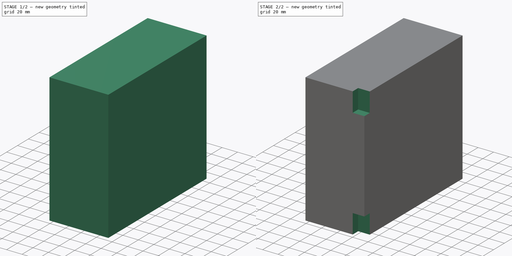
[diagram: build sequence overview — one tinted view per stage of 2, left to right]
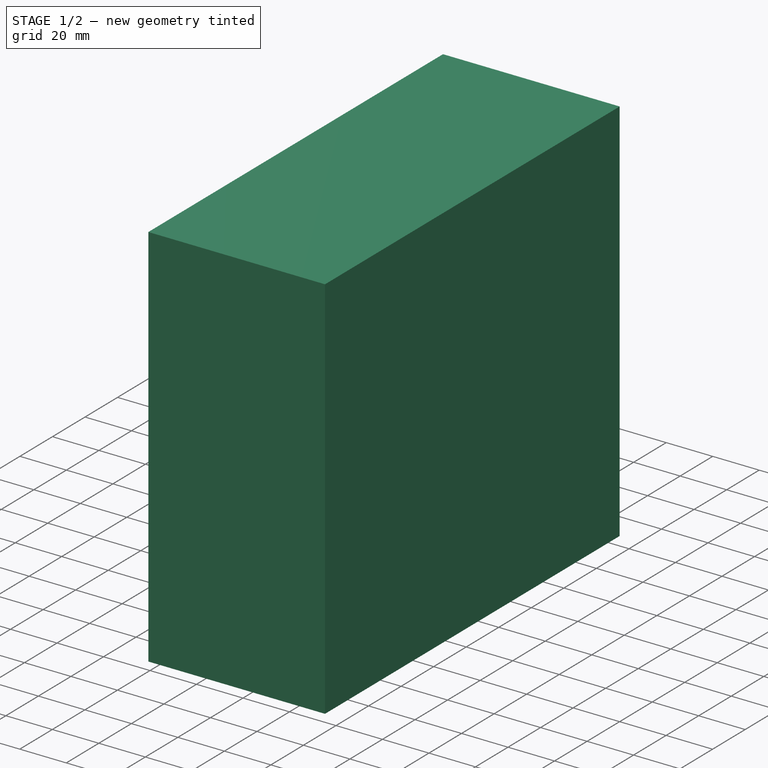
[diagram: stage 1 of 2 — iso view after this stage's code; geometry added in this stage tinted green]
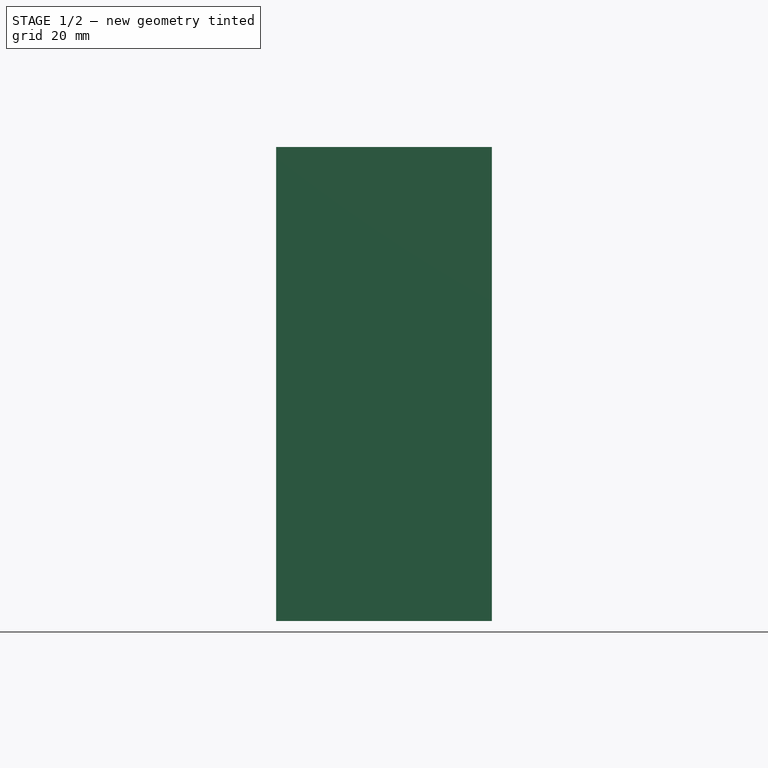
[diagram: stage 1 of 2 — front view after this stage's code; geometry added in this stage tinted green]
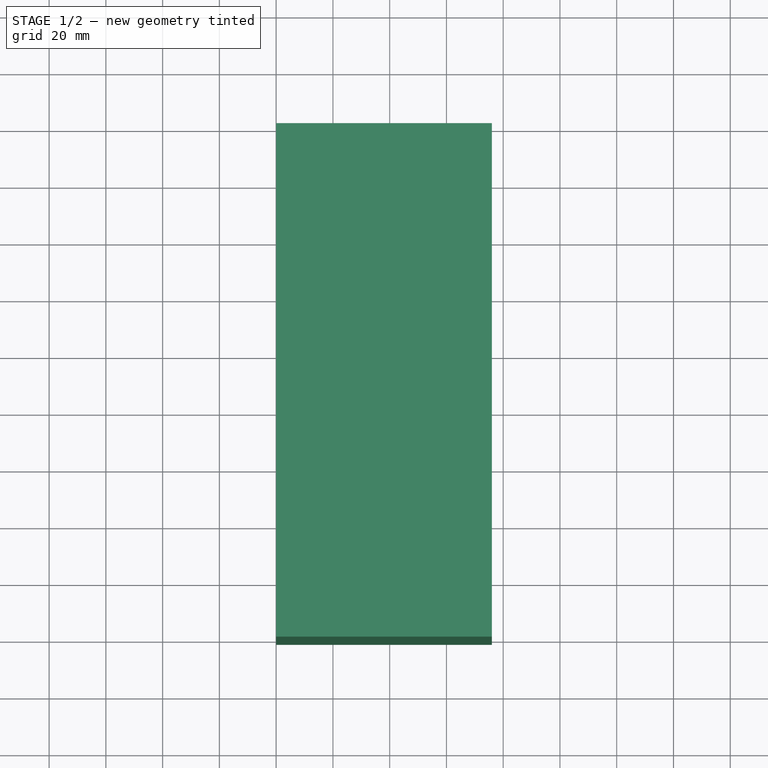
[diagram: stage 1 of 2 — top view after this stage's code; geometry added in this stage tinted green]
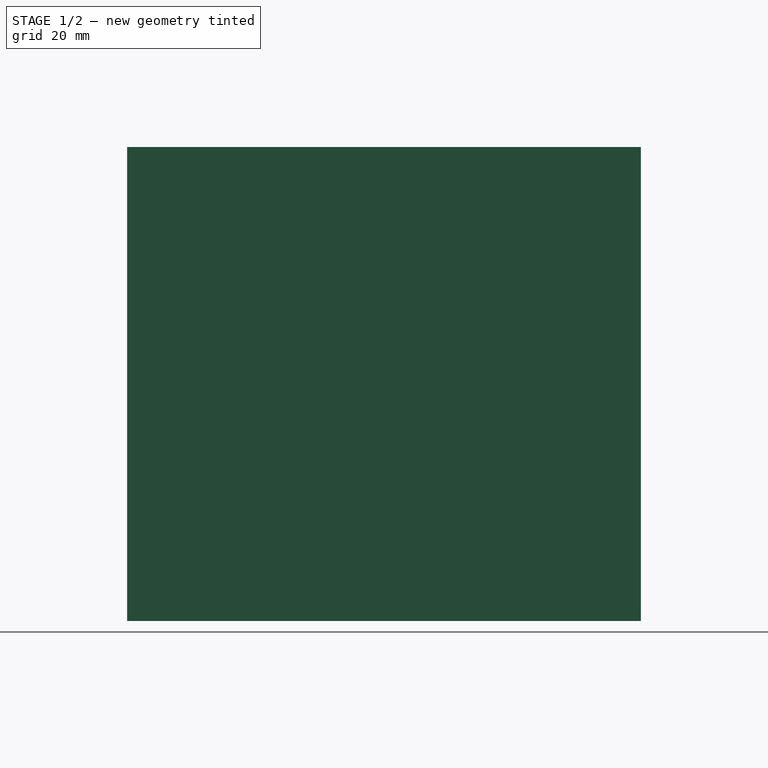
[diagram: stage 1 of 2 — right view after this stage's code; geometry added in this stage tinted green]
FCSTD DOCUMENT  (FreeCAD 0.18R4 (GitTag))
Label: NoBreak
License: All rights reserved
LicenseURL: http://en.wikipedia.org/wiki/All_rights_reserved
objects: Sketcher::SketchObject×2, PartDesign::Pad×1, PartDesign::Pocket×1, PartDesign::Body×1
note: 7 computed .brp shape members not serialized (recipe doc carries the construction recipe); baked Part::Feature solids carry a one-line shape summary decoded from their .brp

FEATURE [Sketcher::SketchObject] Sketch
  MapMode = 5
  Placement = pos=(0,0,0) rot=(1,0,0;1.5708rad)
  Support = -> [XZ_Plane]
  sketch-geometry (4):
    g0: LineSegment StartX=0 StartY=0 StartZ=0 EndX=76 EndY=0 EndZ=0
    g1: LineSegment StartX=76 StartY=0 StartZ=0 EndX=76 EndY=167 EndZ=0
    g2: LineSegment StartX=76 StartY=167 StartZ=0 EndX=0 EndY=167 EndZ=0
    g3: LineSegment StartX=0 StartY=167 StartZ=0 EndX=0 EndY=0 EndZ=0
  constraints (11):
    c: Coincident(g0,g1)
    c: Coincident(g1,g2)
    c: Coincident(g2,g3)
    c: Coincident(g3,g0)
    c: Horizontal(g0)
    c: Horizontal(g2)
    c: Vertical(g1)
    c: Vertical(g3)
    c: DistanceY(g3,g3) = 167
    c: DistanceX(g0,g0) = 76
    c: Coincident(g0,g-1)
FEATURE [PartDesign::Pad] Pad
  Length = 181
  Length2 = 100
  Placement = pos=(0,0,0) rot=(1,0,0;1.5708rad)
  Profile = -> Sketch
  Type = 0
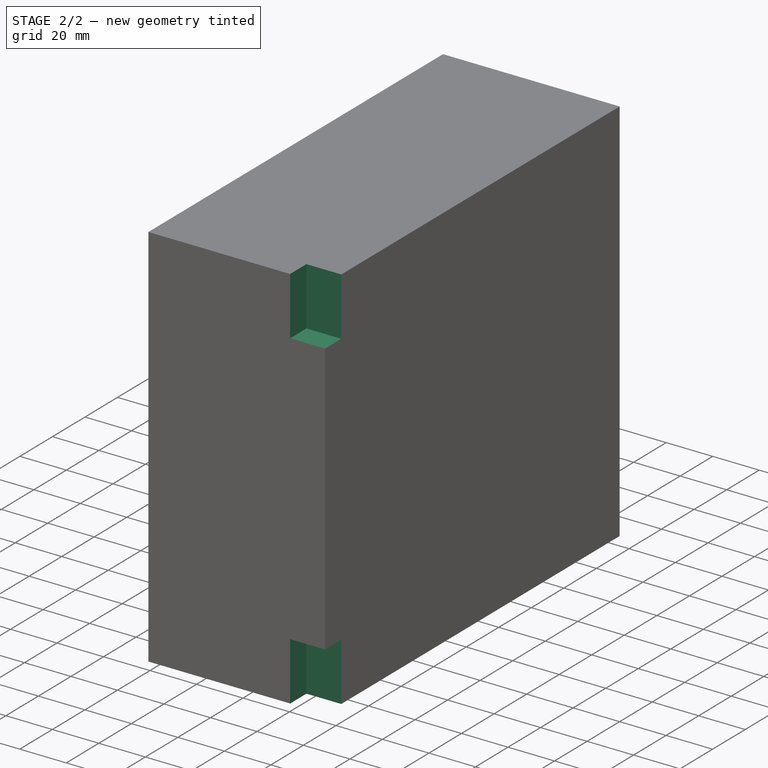
[diagram: stage 2 of 2 — iso view after this stage's code; geometry added in this stage tinted green]
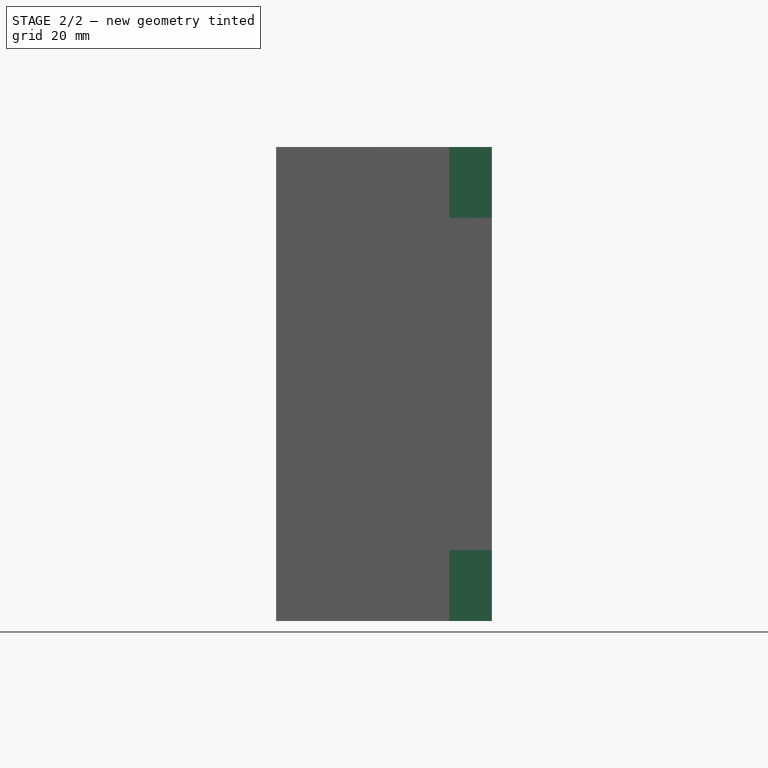
[diagram: stage 2 of 2 — front view after this stage's code; geometry added in this stage tinted green]
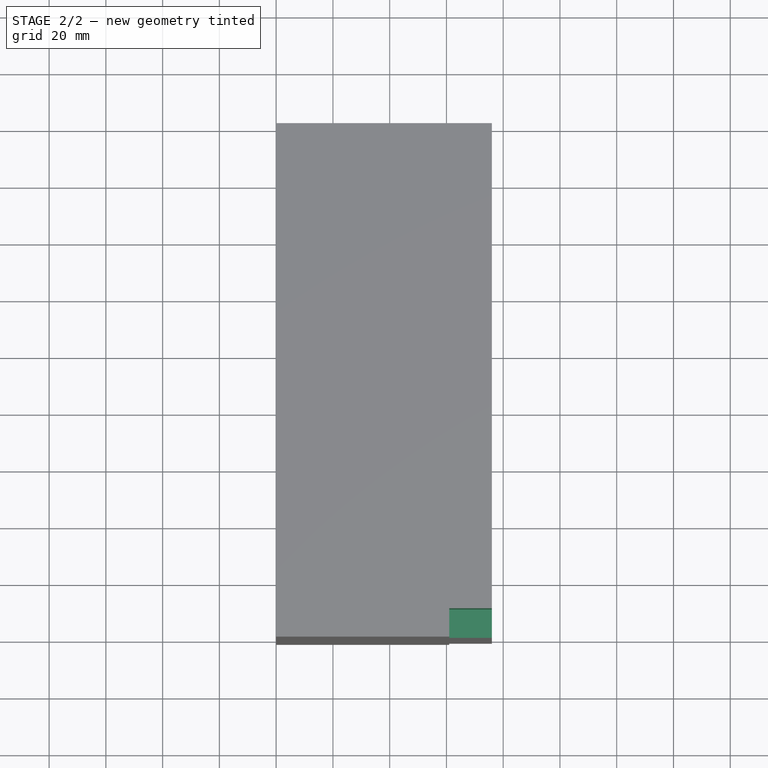
[diagram: stage 2 of 2 — top view after this stage's code; geometry added in this stage tinted green]
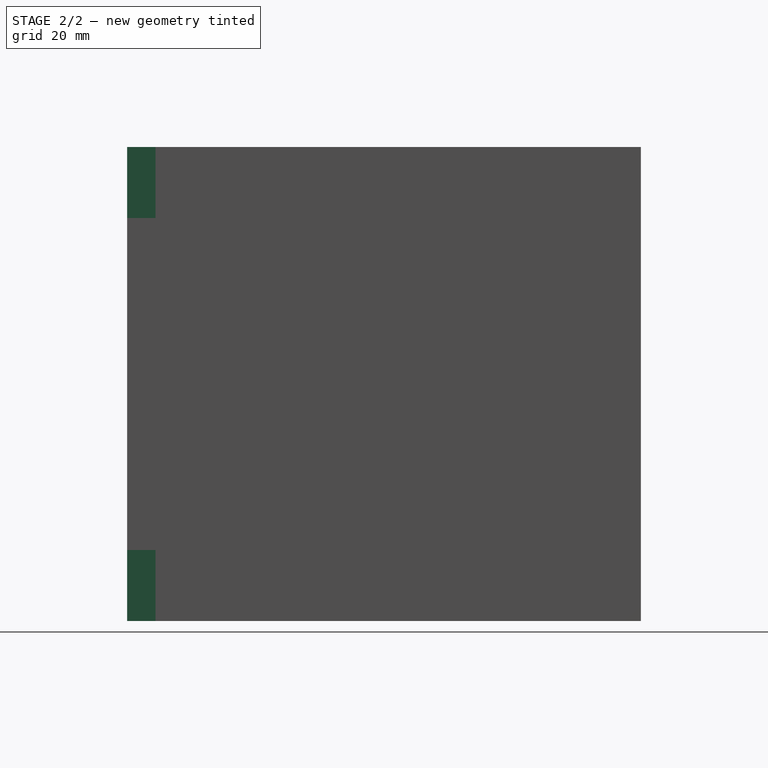
[diagram: stage 2 of 2 — right view after this stage's code; geometry added in this stage tinted green]
FEATURE [Sketcher::SketchObject] Sketch001
  MapMode = 5
  Placement = pos=(76,0,0) rot=(0.707107,0,0.707107;3.14159rad)
  Support = -> [Pad]
  sketch-geometry (8):
    g0: LineSegment StartX=0 StartY=181 StartZ=0 EndX=25 EndY=181 EndZ=0
    g1: LineSegment StartX=25 StartY=181 StartZ=0 EndX=25 EndY=171 EndZ=0
    g2: LineSegment StartX=25 StartY=171 StartZ=0 EndX=0 EndY=171 EndZ=0
    g3: LineSegment StartX=0 StartY=171 StartZ=0 EndX=0 EndY=181 EndZ=0
    g4: LineSegment StartX=142 StartY=181 StartZ=0 EndX=167 EndY=181 EndZ=0
    g5: LineSegment StartX=167 StartY=181 StartZ=0 EndX=167 EndY=171 EndZ=0
    g6: LineSegment StartX=167 StartY=171 StartZ=0 EndX=142 EndY=171 EndZ=0
    g7: LineSegment StartX=142 StartY=171 StartZ=0 EndX=142 EndY=181 EndZ=0
  constraints (24):
    c: Coincident(g0,g1)
    c: Coincident(g1,g2)
    c: Coincident(g2,g3)
    c: Coincident(g3,g0)
    c: Horizontal(g0)
    c: Horizontal(g2)
    c: Vertical(g1)
    c: Vertical(g3)
    c: Coincident(g4,g5)
    c: Coincident(g5,g6)
    c: Coincident(g6,g7)
    c: Coincident(g7,g4)
    c: Horizontal(g4)
    c: Horizontal(g6)
    c: Vertical(g5)
    c: Vertical(g7)
    c: Equal(g6,g2)
    c: Equal(g3,g7)
    c: DistanceY(g5,g5) = 10
    c: DistanceX(g4,g4) = 25
    c: DistanceY(g6,g1) = 0
    c: DistanceY(g-1,g0) = 181
    c: DistanceX(g-1,g5) = 167
    c: DistanceX(g-1,g0) = 0
FEATURE [PartDesign::Pocket] Pocket
  BaseFeature = -> Pad
  Length = 15
  Length2 = 100
  Placement = pos=(0,0,0) rot=(1,0,0;1.5708rad)
  Profile = -> Sketch001
  Type = 0
FEATURE [PartDesign::Body] Body
  Group = -> [Sketch,Pad,Sketch001,Pocket]
  Origin = -> Origin
  Tip = -> Pocket
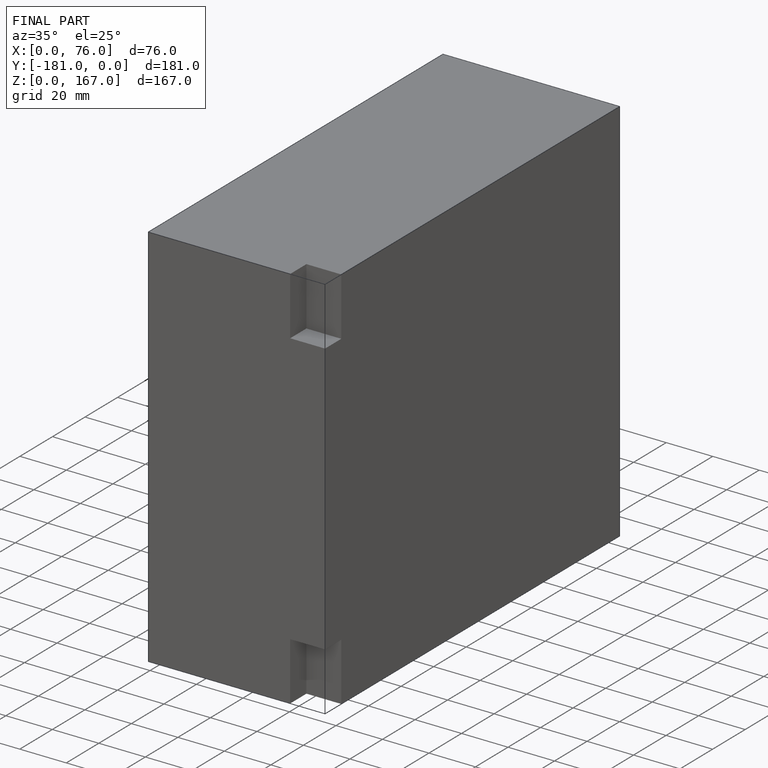
[diagram: finished part — iso view with bounding-box wireframe]
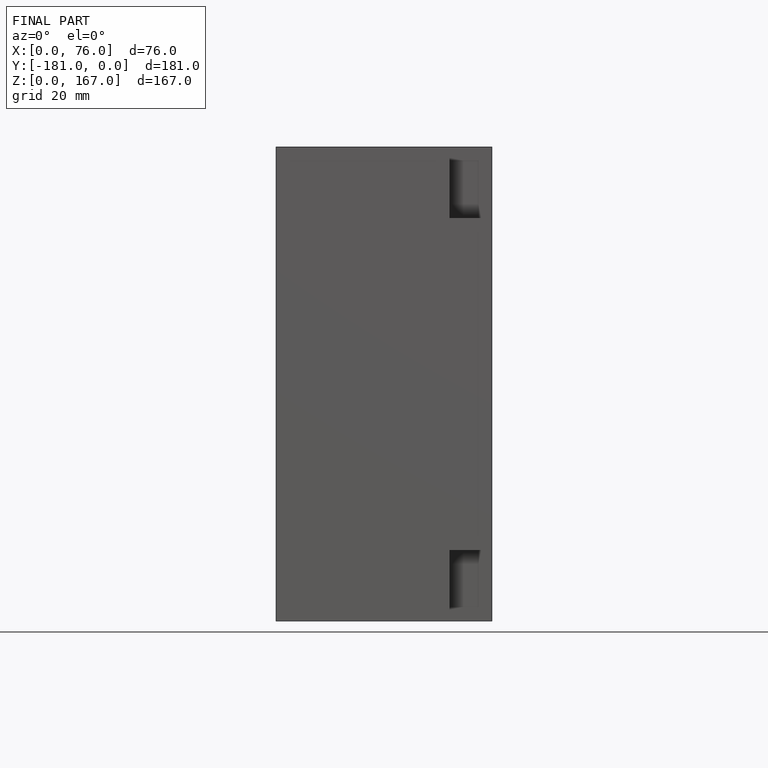
[diagram: finished part — front view with bounding-box wireframe]
